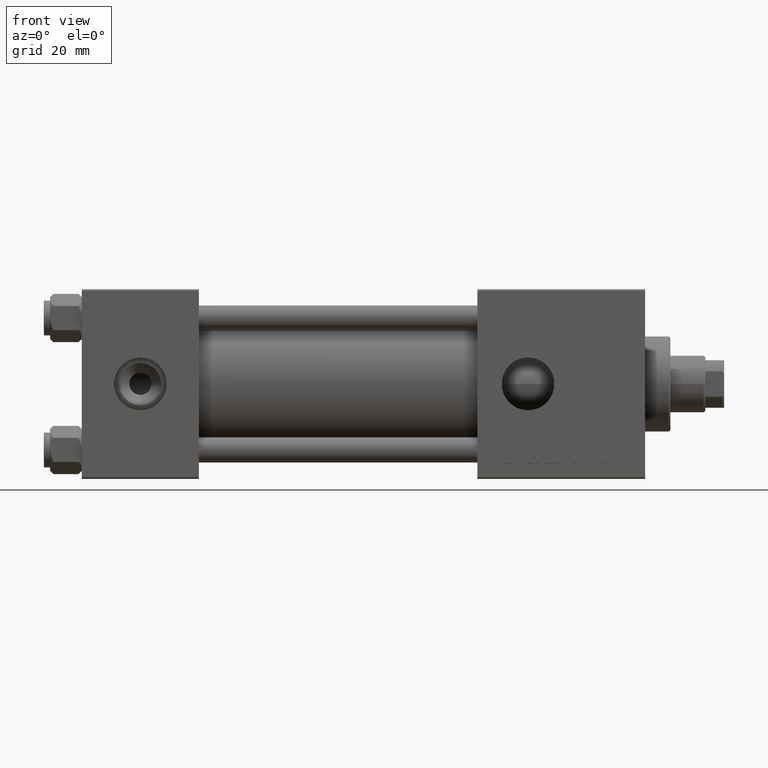
[diagram: clean part render]
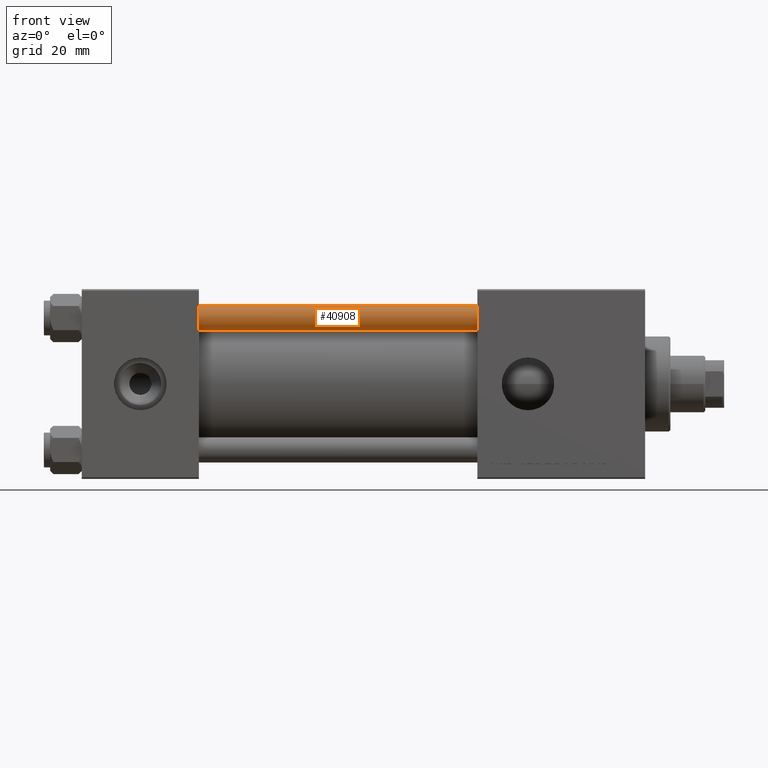
[diagram: same view with one face highlighted and labeled with its STEP entity id]
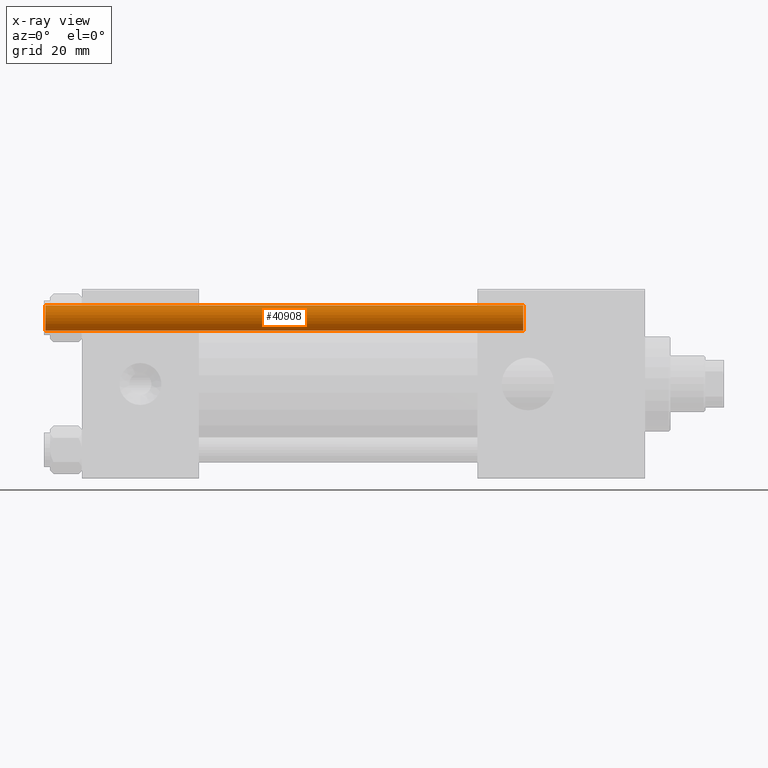
[diagram: x-ray of the same camera — body ghosted, the highlighted face saturated]
A machine part, front view. The second image highlights one B-rep face of the part: STEP entity #40908.
The next image is the same camera in x-ray: the body ghosted, the highlighted face saturated — about 0% of this face is hidden behind the body in this view.
In plain terms, the highlighted cylindrical surface (edge-blend (fillet) strip) has radius 4 mm, axis along (1, 0, -0).
Its self-contained STEP definition (entity closure, byte-faithful):
#1886 = CARTESIAN_POINT ( 'NONE',  ( -4.000000000000000000, 0.000000000000000000, 0.5000000000000281997 ) ) ;
#2402 = DIRECTION ( 'NONE',  ( -1.000000000000000000, 0.000000000000000000, 0.000000000000000000 ) ) ;
#3118 = ORIENTED_EDGE ( 'NONE', *, *, #26671, .T. ) ;
#6217 = LINE ( 'NONE', #22455, #11582 ) ;
#7896 = CARTESIAN_POINT ( 'NONE',  ( 0.000000000000000000, 0.000000000000000000, 151.5000000000000284 ) ) ;
#11582 = VECTOR ( 'NONE', #18662, 1000.000000000000000 ) ;
#12344 = AXIS2_PLACEMENT_3D ( 'NONE', #7896, #47491, #23641 ) ;
#14572 = LINE ( 'NONE', #29786, #37499 ) ;
#18662 = DIRECTION ( 'NONE',  ( -0.000000000000000000, -0.000000000000000000, -1.000000000000000000 ) ) ;
#20839 = DIRECTION ( 'NONE',  ( -0.000000000000000000, -0.000000000000000000, 1.000000000000000000 ) ) ;
#21706 = FACE_OUTER_BOUND ( 'NONE', #33609, .T. ) ;
#21728 = ORIENTED_EDGE ( 'NONE', *, *, #28253, .T. ) ;
#22452 = CARTESIAN_POINT ( 'NONE',  ( 0.000000000000000000, 0.000000000000000000, 152.0000000000000000 ) ) ;
#22455 = CARTESIAN_POINT ( 'NONE',  ( 4.000000000000000000, 4.898587196589412829E-16, 152.0000000000000000 ) ) ;
#23269 = EDGE_CURVE ( 'NONE', #38778, #43524, #14572, .T. ) ;
#23641 = DIRECTION ( 'NONE',  ( 1.000000000000000000, 0.000000000000000000, 0.000000000000000000 ) ) ;
#23662 = DIRECTION ( 'NONE',  ( 1.000000000000000000, 0.000000000000000000, 0.000000000000000000 ) ) ;
#23712 = CIRCLE ( 'NONE', #12344, 4.000000000000000000 ) ;
#26260 = CYLINDRICAL_SURFACE ( 'NONE', #45113, 4.000000000000000000 ) ;
#26671 = EDGE_CURVE ( 'NONE', #38778, #31066, #23712, .T. ) ;
#28253 = EDGE_CURVE ( 'NONE', #31066, #40375, #6217, .T. ) ;
#29786 = CARTESIAN_POINT ( 'NONE',  ( -4.000000000000000000, 0.000000000000000000, 152.0000000000000000 ) ) ;
#29927 = EDGE_CURVE ( 'NONE', #40375, #43524, #37561, .T. ) ;
#30706 = CARTESIAN_POINT ( 'NONE',  ( 4.000000000000000000, 4.898587196589412829E-16, 151.5000000000000284 ) ) ;
#30929 = CARTESIAN_POINT ( 'NONE',  ( 4.000000000000000000, 4.898587196589412829E-16, 0.5000000000000281997 ) ) ;
#31066 = VERTEX_POINT ( 'NONE', #30706 ) ;
#33609 = EDGE_LOOP ( 'NONE', ( #3118, #21728, #36044, #33770 ) ) ;
#33770 = ORIENTED_EDGE ( 'NONE', *, *, #23269, .F. ) ;
#36044 = ORIENTED_EDGE ( 'NONE', *, *, #29927, .T. ) ;
#37189 = DIRECTION ( 'NONE',  ( -0.000000000000000000, -0.000000000000000000, -1.000000000000000000 ) ) ;
#37499 = VECTOR ( 'NONE', #48844, 1000.000000000000000 ) ;
#37561 = CIRCLE ( 'NONE', #41671, 4.000000000000000000 ) ;
#38778 = VERTEX_POINT ( 'NONE', #48470 ) ;
#39138 = CARTESIAN_POINT ( 'NONE',  ( 0.000000000000000000, 0.000000000000000000, 0.5000000000000281997 ) ) ;
#40375 = VERTEX_POINT ( 'NONE', #30929 ) ;
#40908 = ADVANCED_FACE ( 'NONE', ( #21706 ), #26260, .T. ) ;
#41671 = AXIS2_PLACEMENT_3D ( 'NONE', #39138, #20839, #23662 ) ;
#43524 = VERTEX_POINT ( 'NONE', #1886 ) ;
#45113 = AXIS2_PLACEMENT_3D ( 'NONE', #22452, #37189, #2402 ) ;
#47491 = DIRECTION ( 'NONE',  ( 0.000000000000000000, 0.000000000000000000, -1.000000000000000000 ) ) ;
#48470 = CARTESIAN_POINT ( 'NONE',  ( -4.000000000000000000, 0.000000000000000000, 151.5000000000000284 ) ) ;
#48844 = DIRECTION ( 'NONE',  ( -0.000000000000000000, -0.000000000000000000, -1.000000000000000000 ) ) ;